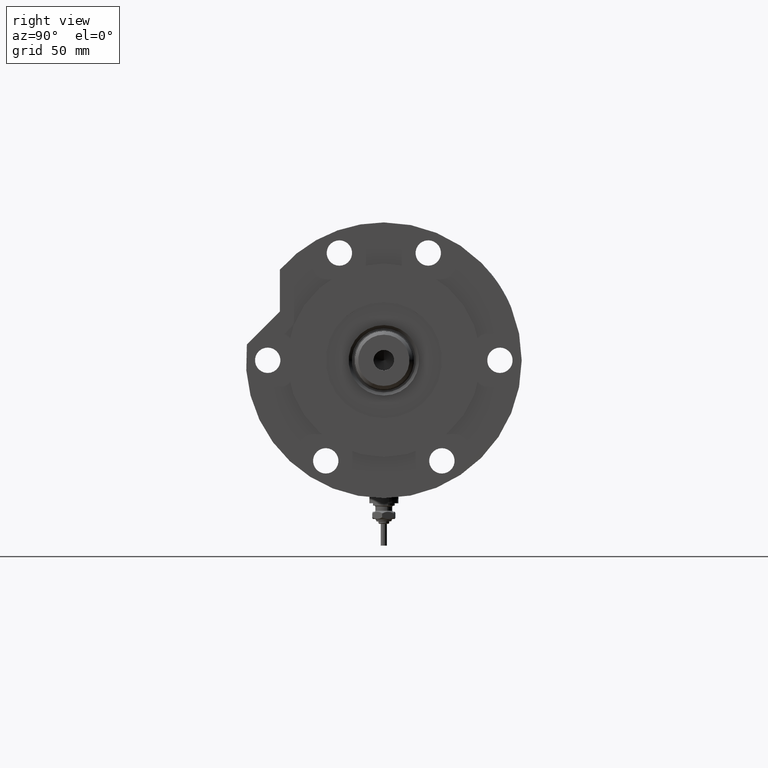
[diagram: clean part render]
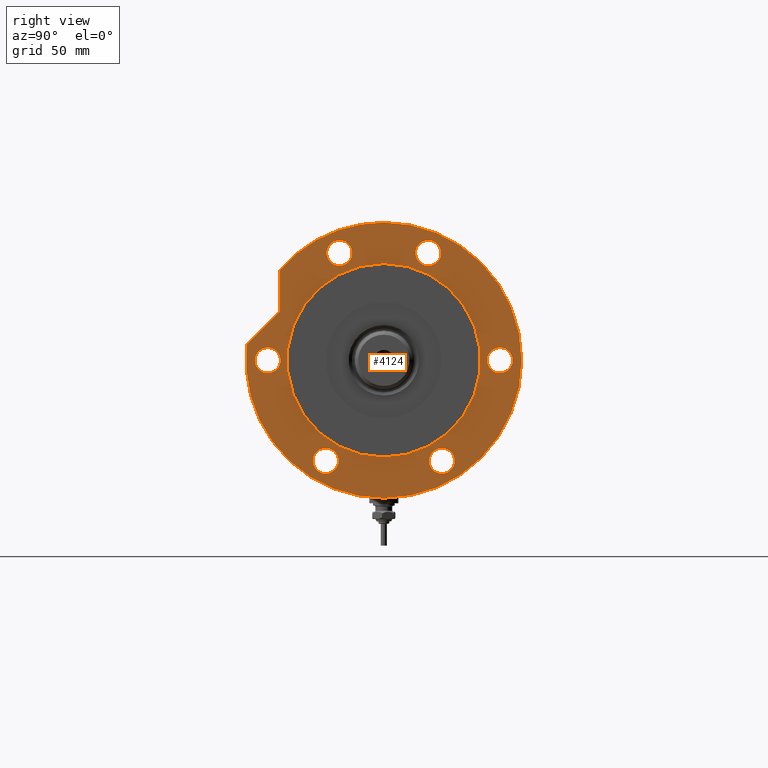
[diagram: same view with one face highlighted and labeled with its STEP entity id]
A machine part, right view. The second image highlights one B-rep face of the part: STEP entity #4124.
In plain terms, the highlighted planar face has unit normal (1, 0, -0).
Its self-contained STEP definition (entity closure, byte-faithful):
#29 = AXIS2_PLACEMENT_3D ( 'NONE', #6569, #6608, #171 ) ;
#44 = VERTEX_POINT ( 'NONE', #2886 ) ;
#53 = AXIS2_PLACEMENT_3D ( 'NONE', #6829, #1083, #6912 ) ;
#64 = CARTESIAN_POINT ( 'NONE',  ( -41.56921938165310593, 23.99999999999990408, 19.00000000000000000 ) ) ;
#65 = CARTESIAN_POINT ( 'NONE',  ( 57.00000000000000000, 6.980486755139912911E-15, 19.00000000000000000 ) ) ;
#171 = DIRECTION ( 'NONE',  ( 1.000000000000000000, 0.000000000000000000, -0.000000000000000000 ) ) ;
#194 = VERTEX_POINT ( 'NONE', #7050 ) ;
#278 = EDGE_LOOP ( 'NONE', ( #6065, #5383 ) ) ;
#346 = EDGE_CURVE ( 'NONE', #194, #44, #7571, .T. ) ;
#419 = ORIENTED_EDGE ( 'NONE', *, *, #5892, .F. ) ;
#426 = ORIENTED_EDGE ( 'NONE', *, *, #1952, .F. ) ;
#466 = EDGE_CURVE ( 'NONE', #798, #753, #2055, .T. ) ;
#555 = DIRECTION ( 'NONE',  ( 1.000000000000000000, 0.000000000000000000, 0.000000000000000000 ) ) ;
#575 = FACE_OUTER_BOUND ( 'NONE', #4905, .T. ) ;
#640 = AXIS2_PLACEMENT_3D ( 'NONE', #64, #2396, #3015 ) ;
#648 = AXIS2_PLACEMENT_3D ( 'NONE', #2322, #3520, #4160 ) ;
#656 = DIRECTION ( 'NONE',  ( 1.000000000000000000, 0.000000000000000000, 0.000000000000000000 ) ) ;
#693 = EDGE_CURVE ( 'NONE', #5371, #1912, #2545, .T. ) ;
#753 = VERTEX_POINT ( 'NONE', #1051 ) ;
#754 = AXIS2_PLACEMENT_3D ( 'NONE', #6420, #1170, #5890 ) ;
#797 = DIRECTION ( 'NONE',  ( 1.000000000000000000, 0.000000000000000000, 0.000000000000000000 ) ) ;
#798 = VERTEX_POINT ( 'NONE', #2482 ) ;
#813 = VERTEX_POINT ( 'NONE', #7233 ) ;
#845 = ORIENTED_EDGE ( 'NONE', *, *, #4334, .F. ) ;
#890 = EDGE_LOOP ( 'NONE', ( #4280, #845 ) ) ;
#999 = CARTESIAN_POINT ( 'NONE',  ( 49.59621756054168173, 18.36880475352450048, 19.00000000000000000 ) ) ;
#1020 = DIRECTION ( 'NONE',  ( 1.000000000000000000, 0.000000000000000000, -0.000000000000000000 ) ) ;
#1024 = CIRCLE ( 'NONE', #4573, 5.249999999999997335 ) ;
#1051 = CARTESIAN_POINT ( 'NONE',  ( -40.00000000000000000, 0.000000000000000000, 19.00000000000000000 ) ) ;
#1076 = ORIENTED_EDGE ( 'NONE', *, *, #7569, .F. ) ;
#1083 = DIRECTION ( 'NONE',  ( 0.000000000000000000, 0.000000000000000000, 1.000000000000000000 ) ) ;
#1120 = EDGE_CURVE ( 'NONE', #5438, #6845, #5378, .T. ) ;
#1168 = CARTESIAN_POINT ( 'NONE',  ( 37.43945616129992970, 42.98007820311755012, 19.00000000000000000 ) ) ;
#1170 = DIRECTION ( 'NONE',  ( 0.000000000000000000, 0.000000000000000000, 1.000000000000000000 ) ) ;
#1233 = CARTESIAN_POINT ( 'NONE',  ( 44.34621756054168173, -18.36880475352450048, 19.00000000000000000 ) ) ;
#1337 = EDGE_LOOP ( 'NONE', ( #3794, #6352 ) ) ;
#1342 = CARTESIAN_POINT ( 'NONE',  ( 20.20945616129993283, 42.98007820311755012, 19.00000000000000000 ) ) ;
#1350 = AXIS2_PLACEMENT_3D ( 'NONE', #5091, #3251, #2836 ) ;
#1493 = CARTESIAN_POINT ( 'NONE',  ( 5.249999999999998224, -48.00000000000000000, 19.00000000000000000 ) ) ;
#1523 = DIRECTION ( 'NONE',  ( 1.000000000000000000, 0.000000000000000000, 0.000000000000000000 ) ) ;
#1562 = CARTESIAN_POINT ( 'NONE',  ( 0.000000000000000000, 0.000000000000000000, 19.00000000000000000 ) ) ;
#1580 = EDGE_CURVE ( 'NONE', #5374, #1739, #5640, .T. ) ;
#1686 = CARTESIAN_POINT ( 'NONE',  ( 44.34621756054168173, 18.36880475352450048, 19.00000000000000000 ) ) ;
#1712 = FACE_BOUND ( 'NONE', #4241, .T. ) ;
#1739 = VERTEX_POINT ( 'NONE', #65 ) ;
#1804 = DIRECTION ( 'NONE',  ( 1.000000000000000000, 0.000000000000000000, 0.000000000000000000 ) ) ;
#1840 = CARTESIAN_POINT ( 'NONE',  ( -36.31921938165311303, 23.99999999999990408, 19.00000000000000000 ) ) ;
#1844 = AXIS2_PLACEMENT_3D ( 'NONE', #5019, #6050, #797 ) ;
#1882 = EDGE_CURVE ( 'NONE', #6101, #4704, #2754, .T. ) ;
#1912 = VERTEX_POINT ( 'NONE', #3404 ) ;
#1952 = EDGE_CURVE ( 'NONE', #7327, #5422, #3179, .T. ) ;
#1966 = DIRECTION ( 'NONE',  ( 1.000000000000000000, 0.000000000000000000, 0.000000000000000000 ) ) ;
#2032 = EDGE_LOOP ( 'NONE', ( #3014, #5702 ) ) ;
#2055 = CIRCLE ( 'NONE', #3426, 40.00000000000000000 ) ;
#2103 = CIRCLE ( 'NONE', #7375, 5.249999999999998224 ) ;
#2108 = ORIENTED_EDGE ( 'NONE', *, *, #3142, .T. ) ;
#2260 = CIRCLE ( 'NONE', #53, 57.00000000000000000 ) ;
#2297 = FACE_BOUND ( 'NONE', #2032, .T. ) ;
#2311 = VERTEX_POINT ( 'NONE', #6813 ) ;
#2322 = CARTESIAN_POINT ( 'NONE',  ( 44.34621756054168173, 18.36880475352450048, 19.00000000000000000 ) ) ;
#2396 = DIRECTION ( 'NONE',  ( 0.000000000000000000, 0.000000000000000000, 1.000000000000000000 ) ) ;
#2414 = DIRECTION ( 'NONE',  ( 0.000000000000000000, 0.000000000000000000, 1.000000000000000000 ) ) ;
#2426 = CARTESIAN_POINT ( 'NONE',  ( -5.249999999999998224, -48.00000000000000000, 19.00000000000000000 ) ) ;
#2482 = CARTESIAN_POINT ( 'NONE',  ( 40.00000000000000000, 4.898587196589413026E-15, 19.00000000000000000 ) ) ;
#2545 = CIRCLE ( 'NONE', #7459, 5.249999999999997335 ) ;
#2609 = CIRCLE ( 'NONE', #640, 5.249999999999997335 ) ;
#2635 = DIRECTION ( 'NONE',  ( 1.000000000000000000, 0.000000000000000000, 0.000000000000000000 ) ) ;
#2696 = ORIENTED_EDGE ( 'NONE', *, *, #1580, .T. ) ;
#2738 = ORIENTED_EDGE ( 'NONE', *, *, #466, .F. ) ;
#2754 = LINE ( 'NONE', #3981, #4163 ) ;
#2762 = DIRECTION ( 'NONE',  ( 0.000000000000000000, 0.000000000000000000, 1.000000000000000000 ) ) ;
#2836 = DIRECTION ( 'NONE',  ( 1.000000000000000000, 0.000000000000000000, 0.000000000000000000 ) ) ;
#2878 = CARTESIAN_POINT ( 'NONE',  ( -57.00000000000000000, 0.000000000000000000, 19.00000000000000000 ) ) ;
#2886 = CARTESIAN_POINT ( 'NONE',  ( -36.31921938165294961, -24.00000000000018829, 19.00000000000000000 ) ) ;
#2896 = ORIENTED_EDGE ( 'NONE', *, *, #4612, .F. ) ;
#2933 = DIRECTION ( 'NONE',  ( 0.000000000000000000, 0.000000000000000000, 1.000000000000000000 ) ) ;
#2976 = EDGE_CURVE ( 'NONE', #813, #5501, #6496, .T. ) ;
#3004 = DIRECTION ( 'NONE',  ( 1.000000000000000000, 0.000000000000000000, 0.000000000000000000 ) ) ;
#3014 = ORIENTED_EDGE ( 'NONE', *, *, #4462, .F. ) ;
#3015 = DIRECTION ( 'NONE',  ( 1.000000000000000000, 0.000000000000000000, 0.000000000000000000 ) ) ;
#3142 = EDGE_CURVE ( 'NONE', #1739, #4704, #4421, .T. ) ;
#3179 = CIRCLE ( 'NONE', #6379, 5.249999999999998224 ) ;
#3251 = DIRECTION ( 'NONE',  ( 0.000000000000000000, 0.000000000000000000, 1.000000000000000000 ) ) ;
#3362 = DIRECTION ( 'NONE',  ( 0.000000000000000000, 0.000000000000000000, 1.000000000000000000 ) ) ;
#3404 = CARTESIAN_POINT ( 'NONE',  ( 39.09621756054168173, -18.36880475352450048, 19.00000000000000000 ) ) ;
#3426 = AXIS2_PLACEMENT_3D ( 'NONE', #6418, #7034, #7065 ) ;
#3520 = DIRECTION ( 'NONE',  ( 0.000000000000000000, 0.000000000000000000, 1.000000000000000000 ) ) ;
#3574 = CARTESIAN_POINT ( 'NONE',  ( 0.000000000000000000, -48.00000000000000000, 19.00000000000000000 ) ) ;
#3599 = FACE_BOUND ( 'NONE', #890, .T. ) ;
#3694 = AXIS2_PLACEMENT_3D ( 'NONE', #1233, #2933, #1804 ) ;
#3794 = ORIENTED_EDGE ( 'NONE', *, *, #2976, .F. ) ;
#3829 = CIRCLE ( 'NONE', #1844, 5.249999999999997335 ) ;
#3868 = EDGE_CURVE ( 'NONE', #44, #194, #3829, .T. ) ;
#3870 = CARTESIAN_POINT ( 'NONE',  ( 49.59621756054168173, -18.36880475352450048, 19.00000000000000000 ) ) ;
#3932 = CARTESIAN_POINT ( 'NONE',  ( 0.000000000000000000, -48.00000000000000000, 19.00000000000000000 ) ) ;
#3962 = AXIS2_PLACEMENT_3D ( 'NONE', #4597, #2762, #1523 ) ;
#3981 = CARTESIAN_POINT ( 'NONE',  ( 0.000000000000000000, 42.98007820311755012, 19.00000000000000000 ) ) ;
#4043 = DIRECTION ( 'NONE',  ( 0.000000000000000000, 0.000000000000000000, 1.000000000000000000 ) ) ;
#4065 = FACE_BOUND ( 'NONE', #278, .T. ) ;
#4124 = ADVANCED_FACE ( 'NONE', ( #3599, #2297, #4635, #1712, #4065, #5835, #575, #4236 ), #6077, .T. ) ;
#4138 = DIRECTION ( 'NONE',  ( 0.7071067811865510144, -0.7071067811865441310, 0.000000000000000000 ) ) ;
#4148 = CARTESIAN_POINT ( 'NONE',  ( 0.000000000000000000, 0.000000000000000000, 19.00000000000000000 ) ) ;
#4160 = DIRECTION ( 'NONE',  ( 1.000000000000000000, 0.000000000000000000, 0.000000000000000000 ) ) ;
#4163 = VECTOR ( 'NONE', #1020, 1000.000000000000000 ) ;
#4236 = FACE_BOUND ( 'NONE', #6249, .T. ) ;
#4241 = EDGE_LOOP ( 'NONE', ( #2896, #426 ) ) ;
#4280 = ORIENTED_EDGE ( 'NONE', *, *, #1120, .F. ) ;
#4304 = CIRCLE ( 'NONE', #3694, 5.249999999999997335 ) ;
#4334 = EDGE_CURVE ( 'NONE', #6845, #5438, #7013, .T. ) ;
#4421 = CIRCLE ( 'NONE', #5901, 57.00000000000000000 ) ;
#4423 = DIRECTION ( 'NONE',  ( 0.000000000000000000, 0.000000000000000000, 1.000000000000000000 ) ) ;
#4462 = EDGE_CURVE ( 'NONE', #7167, #4949, #7133, .T. ) ;
#4500 = CARTESIAN_POINT ( 'NONE',  ( 5.249999999999998224, 48.00000000000000000, 19.00000000000000000 ) ) ;
#4573 = AXIS2_PLACEMENT_3D ( 'NONE', #1686, #4043, #555 ) ;
#4597 = CARTESIAN_POINT ( 'NONE',  ( 0.000000000000000000, 48.00000000000000000, 19.00000000000000000 ) ) ;
#4612 = EDGE_CURVE ( 'NONE', #5422, #7327, #2103, .T. ) ;
#4635 = FACE_BOUND ( 'NONE', #5612, .T. ) ;
#4666 = CARTESIAN_POINT ( 'NONE',  ( -5.249999999999998224, 48.00000000000000000, 19.00000000000000000 ) ) ;
#4704 = VERTEX_POINT ( 'NONE', #1168 ) ;
#4723 = DIRECTION ( 'NONE',  ( 0.000000000000000000, 0.000000000000000000, 1.000000000000000000 ) ) ;
#4748 = CARTESIAN_POINT ( 'NONE',  ( 31.59476718220863845, 31.59476718220895108, 19.00000000000000000 ) ) ;
#4905 = EDGE_LOOP ( 'NONE', ( #7128, #1076, #6005, #2696, #2108 ) ) ;
#4949 = VERTEX_POINT ( 'NONE', #999 ) ;
#5019 = CARTESIAN_POINT ( 'NONE',  ( -41.56921938165294961, -24.00000000000018829, 19.00000000000000000 ) ) ;
#5091 = CARTESIAN_POINT ( 'NONE',  ( -41.56921938165310593, 23.99999999999990408, 19.00000000000000000 ) ) ;
#5158 = DIRECTION ( 'NONE',  ( 1.000000000000000000, 0.000000000000000000, 0.000000000000000000 ) ) ;
#5369 = CARTESIAN_POINT ( 'NONE',  ( 39.09621756054168173, 18.36880475352450048, 19.00000000000000000 ) ) ;
#5371 = VERTEX_POINT ( 'NONE', #3870 ) ;
#5374 = VERTEX_POINT ( 'NONE', #2878 ) ;
#5378 = CIRCLE ( 'NONE', #5494, 5.249999999999998224 ) ;
#5383 = ORIENTED_EDGE ( 'NONE', *, *, #3868, .F. ) ;
#5422 = VERTEX_POINT ( 'NONE', #2426 ) ;
#5438 = VERTEX_POINT ( 'NONE', #4666 ) ;
#5494 = AXIS2_PLACEMENT_3D ( 'NONE', #6698, #7478, #2635 ) ;
#5496 = EDGE_CURVE ( 'NONE', #5501, #813, #2609, .T. ) ;
#5501 = VERTEX_POINT ( 'NONE', #1840 ) ;
#5612 = EDGE_LOOP ( 'NONE', ( #6540, #5617 ) ) ;
#5617 = ORIENTED_EDGE ( 'NONE', *, *, #693, .F. ) ;
#5640 = CIRCLE ( 'NONE', #7469, 57.00000000000000000 ) ;
#5702 = ORIENTED_EDGE ( 'NONE', *, *, #6337, .F. ) ;
#5835 = FACE_BOUND ( 'NONE', #1337, .T. ) ;
#5871 = AXIS2_PLACEMENT_3D ( 'NONE', #7330, #4423, #6762 ) ;
#5872 = LINE ( 'NONE', #4748, #6783 ) ;
#5873 = EDGE_CURVE ( 'NONE', #1912, #5371, #4304, .T. ) ;
#5878 = DIRECTION ( 'NONE',  ( 1.000000000000000000, 0.000000000000000000, 0.000000000000000000 ) ) ;
#5890 = DIRECTION ( 'NONE',  ( 1.000000000000000000, 0.000000000000000000, 0.000000000000000000 ) ) ;
#5892 = EDGE_CURVE ( 'NONE', #753, #798, #7373, .T. ) ;
#5901 = AXIS2_PLACEMENT_3D ( 'NONE', #4148, #2414, #3004 ) ;
#5912 = DIRECTION ( 'NONE',  ( 0.000000000000000000, 0.000000000000000000, 1.000000000000000000 ) ) ;
#6005 = ORIENTED_EDGE ( 'NONE', *, *, #7435, .T. ) ;
#6050 = DIRECTION ( 'NONE',  ( 0.000000000000000000, 0.000000000000000000, 1.000000000000000000 ) ) ;
#6065 = ORIENTED_EDGE ( 'NONE', *, *, #346, .F. ) ;
#6077 = PLANE ( 'NONE',  #29 ) ;
#6101 = VERTEX_POINT ( 'NONE', #1342 ) ;
#6244 = DIRECTION ( 'NONE',  ( 0.000000000000000000, 0.000000000000000000, 1.000000000000000000 ) ) ;
#6249 = EDGE_LOOP ( 'NONE', ( #419, #2738 ) ) ;
#6337 = EDGE_CURVE ( 'NONE', #4949, #7167, #1024, .T. ) ;
#6352 = ORIENTED_EDGE ( 'NONE', *, *, #5496, .F. ) ;
#6379 = AXIS2_PLACEMENT_3D ( 'NONE', #3574, #5912, #656 ) ;
#6418 = CARTESIAN_POINT ( 'NONE',  ( 0.000000000000000000, 0.000000000000000000, 19.00000000000000000 ) ) ;
#6420 = CARTESIAN_POINT ( 'NONE',  ( 0.000000000000000000, 0.000000000000000000, 19.00000000000000000 ) ) ;
#6496 = CIRCLE ( 'NONE', #1350, 5.249999999999997335 ) ;
#6540 = ORIENTED_EDGE ( 'NONE', *, *, #5873, .F. ) ;
#6569 = CARTESIAN_POINT ( 'NONE',  ( 0.000000000000000000, 0.000000000000000000, 19.00000000000000000 ) ) ;
#6608 = DIRECTION ( 'NONE',  ( 0.000000000000000000, 0.000000000000000000, 1.000000000000000000 ) ) ;
#6698 = CARTESIAN_POINT ( 'NONE',  ( 0.000000000000000000, 48.00000000000000000, 19.00000000000000000 ) ) ;
#6762 = DIRECTION ( 'NONE',  ( 1.000000000000000000, 0.000000000000000000, 0.000000000000000000 ) ) ;
#6783 = VECTOR ( 'NONE', #4138, 999.9999999999998863 ) ;
#6813 = CARTESIAN_POINT ( 'NONE',  ( 6.569366352211361004, 56.62016801220598694, 19.00000000000000000 ) ) ;
#6829 = CARTESIAN_POINT ( 'NONE',  ( 0.000000000000000000, 0.000000000000000000, 19.00000000000000000 ) ) ;
#6845 = VERTEX_POINT ( 'NONE', #4500 ) ;
#6912 = DIRECTION ( 'NONE',  ( 1.000000000000000000, 0.000000000000000000, 0.000000000000000000 ) ) ;
#6982 = CARTESIAN_POINT ( 'NONE',  ( 44.34621756054168173, -18.36880475352450048, 19.00000000000000000 ) ) ;
#7013 = CIRCLE ( 'NONE', #3962, 5.249999999999998224 ) ;
#7034 = DIRECTION ( 'NONE',  ( 0.000000000000000000, 0.000000000000000000, 1.000000000000000000 ) ) ;
#7050 = CARTESIAN_POINT ( 'NONE',  ( -46.81921938165294961, -24.00000000000018829, 19.00000000000000000 ) ) ;
#7065 = DIRECTION ( 'NONE',  ( 1.000000000000000000, 0.000000000000000000, 0.000000000000000000 ) ) ;
#7128 = ORIENTED_EDGE ( 'NONE', *, *, #1882, .F. ) ;
#7133 = CIRCLE ( 'NONE', #648, 5.249999999999997335 ) ;
#7167 = VERTEX_POINT ( 'NONE', #5369 ) ;
#7233 = CARTESIAN_POINT ( 'NONE',  ( -46.81921938165310593, 23.99999999999990408, 19.00000000000000000 ) ) ;
#7327 = VERTEX_POINT ( 'NONE', #1493 ) ;
#7330 = CARTESIAN_POINT ( 'NONE',  ( -41.56921938165294961, -24.00000000000018829, 19.00000000000000000 ) ) ;
#7373 = CIRCLE ( 'NONE', #754, 40.00000000000000000 ) ;
#7375 = AXIS2_PLACEMENT_3D ( 'NONE', #3932, #3362, #5158 ) ;
#7435 = EDGE_CURVE ( 'NONE', #2311, #5374, #2260, .T. ) ;
#7459 = AXIS2_PLACEMENT_3D ( 'NONE', #6982, #4723, #5878 ) ;
#7469 = AXIS2_PLACEMENT_3D ( 'NONE', #1562, #6244, #1966 ) ;
#7478 = DIRECTION ( 'NONE',  ( 0.000000000000000000, 0.000000000000000000, 1.000000000000000000 ) ) ;
#7569 = EDGE_CURVE ( 'NONE', #2311, #6101, #5872, .T. ) ;
#7571 = CIRCLE ( 'NONE', #5871, 5.249999999999997335 ) ;